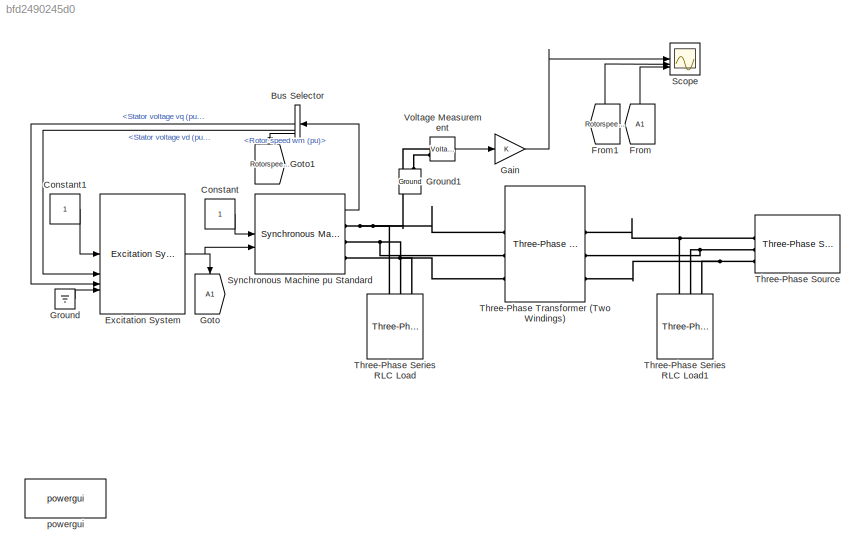
MODEL slx_bfd2490245d0
KIND model
CONFIG AbsTol = auto
CONFIG EnableMultiTasking = off
CONFIG FixedStep = auto
CONFIG MaxStep = auto
CONFIG MinStep = auto
CONFIG RelTol = 1e-3
CONFIG SampleTimeConstraint = Unconstrained
CONFIG SolverName = ode23tb
CONFIG StartTime = 0.0
CONFIG StopTime = 0.1
BLOCK [BusSelector] Bus Selector
  OutputSignals = dq0 components.Stator voltage  vq (pu),dq0 components.Stator voltage  vd (pu),Mechanical.Rotor speed  wm  (pu)
BLOCK [Constant] Constant
BLOCK [Constant] Constant1
BLOCK [Reference] Excitation System  REF=spsExcitationSystemLib/Excitation System
  LibrarySourceBlock = sps_lib/Electrical Machines/Synchronous Machine Control/Excitation System
  SourceBlock = spsExcitationSystemLib/Excitation System
  SourceType = Excitation System
BLOCK [From] From
  GotoTag = A1
  NameLocation = right
BLOCK [From] From1
  GotoTag = Rotorspeedwmpu
  NameLocation = right
BLOCK [Gain] Gain
BLOCK [Goto] Goto
  GotoTag = A1
  NameLocation = left
BLOCK [Goto] Goto1
  GotoTag = Rotorspeedwmpu
  NameLocation = right
BLOCK [Ground] Ground
BLOCK [Reference] Ground1  REF=spsGroundLib/Ground
  LibrarySourceBlock = sps_lib/Utilities/Ground
  NameLocation = right
  SourceBlock = spsGroundLib/Ground
  SourceType = Ground
BLOCK [Scope] Scope
  Floating = off
  NumInputPorts = 3
  ScopeSpecificationString = Simulink.scopes.TimeScopeBlockCfg('CurrentConfiguration', extmgr.ConfigurationSet(extmgr.Configuration('Core','General UI',true,'FigureColor',[1 1 1]),extmgr.Configuration('Core','Source UI',true),extmgr.Configuration('Sources','WiredSimulink',true),extmgr.Configuration('Visuals','Time Domain',true,'SerializedDisplays',{struct('MinYLimReal','-408.93508','MaxYLimReal','409.26417','YLabelReal','','M...<+3198ch>
BLOCK [Reference] Synchronous Machine pu Standard  REF=spsSynchronousMachinepuStandardLib/Synchronous Machine
pu Standard
  LibrarySourceBlock = sps_lib/Electrical Machines/Synchronous Machine\npu Standard
  SourceBlock = spsSynchronousMachinepuStandardLib/Synchronous Machine\npu Standard
  SourceType = Synchronous Machine
BLOCK [Reference] Three-Phase Series RLC Load  REF=spsThreePhaseSeriesRLCLoadLib/Three-Phase
Series RLC Load
  AttributesFormatString = \n
  LibrarySourceBlock = sps_lib/Passives/Three-Phase\nSeries RLC Load
  SourceBlock = spsThreePhaseSeriesRLCLoadLib/Three-Phase\nSeries RLC Load
  SourceType = Three-Phase Series RLC Load
BLOCK [Reference] Three-Phase Series RLC Load1  REF=spsThreePhaseSeriesRLCLoadLib/Three-Phase
Series RLC Load
  AttributesFormatString = \n
  LibrarySourceBlock = sps_lib/Passives/Three-Phase\nSeries RLC Load
  SourceBlock = spsThreePhaseSeriesRLCLoadLib/Three-Phase\nSeries RLC Load
  SourceType = Three-Phase Series RLC Load
BLOCK [Reference] Three-Phase Source  REF=spsThreePhaseSourceLib/Three-Phase Source
  LibrarySourceBlock = sps_lib/Sources/Three-Phase Source
  SourceBlock = spsThreePhaseSourceLib/Three-Phase Source
  SourceType = Three-Phase Source
BLOCK [Reference] Three-Phase Transformer (Two Windings)  REF=spsThreePhaseTransformerTwoWindingsLib/Three-Phase
Transformer
(Two Windings)
  LibrarySourceBlock = sps_lib/Power Grid Elements/Three-Phase\nTransformer\n(Two Windings)
  SourceBlock = spsThreePhaseTransformerTwoWindingsLib/Three-Phase\nTransformer\n(Two Windings)
  SourceType = Three-Phase Transformer (Two Windings)
BLOCK [Reference] Voltage Measurement  REF=spsVoltageMeasurementLib/Voltage Measurement
  LibrarySourceBlock = sps_lib/Sensors and Measurements/Voltage Measurement
  SourceBlock = spsVoltageMeasurementLib/Voltage Measurement
  SourceType = Voltage Measurement
  UserDataPersistent = on
BLOCK [Reference] powergui  REF=sps_lib/powergui
  LibrarySourceBlock = sps_lib/powergui
  Priority = 1
  SourceBlock = sps_lib/powergui
  SourceType = PSB option menu block
LINE Bus Selector:1 -> Excitation System:3
LINE Bus Selector:2 -> Excitation System:2
LINE Bus Selector:3 -> Goto1:1
LINE Constant1:1 -> Excitation System:1
LINE Constant:1 -> Synchronous Machine pu Standard:1
NET Excitation System:1 -> Goto:1, Synchronous Machine pu Standard:2
LINE From1:1 -> Scope:2
LINE From:1 -> Scope:3
LINE Gain:1 -> Scope:1
LINE Ground:1 -> Excitation System:4
LINE Synchronous Machine pu Standard:1 -> Bus Selector:1
LINE Voltage Measurement:1 -> Gain:1
PLINE Ground1:LConn1 -- Voltage Measurement:LConn2
PNET net1: Synchronous Machine pu Standard:RConn1 -- Three-Phase Series RLC Load:LConn1 -- Three-Phase Transformer (Two Windings):LConn1 -- Voltage Measurement:LConn1
PNET net2: Synchronous Machine pu Standard:RConn2 -- Three-Phase Series RLC Load:LConn2 -- Three-Phase Transformer (Two Windings):LConn2
PNET net3: Synchronous Machine pu Standard:RConn3 -- Three-Phase Series RLC Load:LConn3 -- Three-Phase Transformer (Two Windings):LConn3
PNET net4: Three-Phase Series RLC Load1:LConn1 -- Three-Phase Source:RConn1 -- Three-Phase Transformer (Two Windings):RConn1
PNET net5: Three-Phase Series RLC Load1:LConn2 -- Three-Phase Source:RConn2 -- Three-Phase Transformer (Two Windings):RConn2
PNET net6: Three-Phase Series RLC Load1:LConn3 -- Three-Phase Source:RConn3 -- Three-Phase Transformer (Two Windings):RConn3
note: NET lines group one-source signal fan-out (src -> all destinations, sorted); 1:1 wires keep LINE; PNET lines group multi-terminal physical nets as a canonical sorted terminal list (undirected conserving connections); 2-terminal nets keep the pairwise PLINE form
